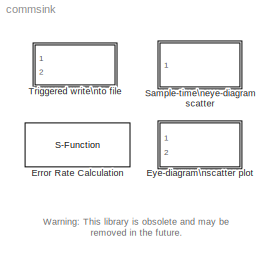
MODEL commsink
KIND library
BLOCK [S-Function] Error Rate Calculation
  FunctionName = scomerrrate
  MaskCallbackString = ||commblkerrrate(gcb,'CpMode');||commblkerrrate(gcb,'OutMode');||
  MaskDescription = Compute the error rate of the received data by comparing it to a delayed version of the transmitted data.  The delays are specified in number of samples, regardless of whether the input is a scalar or vector.  \n\nThe 'Computation mode' parameter allows the block to compare only certain portions of each frame.  For example, to compare only the first 10 and last 6 values in a frame of 80 symbols, s...<+334ch>
  MaskDisplay = disp('Error Rate\\nCalculation');\nport_label('input',s.i1,s.i1s);\nport_label('input',s.i2,s.i2s);\nport_label('input',s.i3,s.i3s);\nport_label('input',s.i4,s.i4s);
  MaskEnableString = on,on,on,off,on,on,on
  MaskIconFrame = on
  MaskIconOpaque = on
  MaskIconRotate = none
  MaskIconUnits = autoscale
  MaskInitialization = [s] = commblkerrrate(gcb,'init');\nif(PMode==1)\n    if(isempty(WsName))\n        error('Output variable name cannot be empty.')\n    end\n    if(~isletter(WsName(1)))\n        error('Output variable name must be a string.')\n    end\nend\n
  MaskPromptString = Receive delay:|Computation delay:|Computation mode:|Selected samples from frame:|Output data:|Variable name:|Reset port
  MaskSelfModifiable = on
  MaskStyleString = edit,edit,popup(Entire frame|Select samples from mask|Select samples from port),edit,popup(Workspace|Port),edit,checkbox
  MaskToolTipString = on,on,on,on,on,on,on
  MaskTunableValueString = off,off,off,off,off,off,off
  MaskType = Error Rate Calculation
  MaskValueString = 0|0|Entire frame|[]|Workspace|ErrorVec|off
  MaskVarAliasString = ,,,,,,
  MaskVariables = N=@1;st_delay=@2;cp_mode=@3;subframe=@4;PMode=@5;WsName=&6;RsMode2=@7;
  MaskVisibilityString = on,on,on,off,on,on,on
  Parameters = N, st_delay, cp_mode, subframe, PMode, WsName, RsMode2
  Ports = [2]
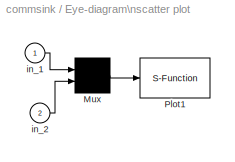
BLOCK [SubSystem] Eye-diagram\nscatter plot
  CopyFcn = eyediasi([],[],[],'CopyBlock')
  DeleteFcn = eyediasi([],[],[],'DeleteBlock')
  LoadFcn = eyediasi([],[],[],'LoadBlock')
  MaskCallbackString = |||||
  MaskDescription = Produce eye-pattern diagram/scatter plot/x-y plot with the rising edge of the second input as the decision line.
  MaskDisplay = plot(0,0,100,100,[5 95 95 5 5 5 5+90*[0:1/30:1] 5+90*[1:-1/30:0]],[35 35 95 95 35 65 sin([0:1/30:1]*pi*2)*25+65 sin([0:1/30:1]*pi*2)*25+65]*.8+9, x,y);
  MaskEnableString = on,on,on,on,on,on
  MaskHelp = This plot opens one, two, or three plots by assigning the line type parameters. The scatter plot point is selected by the rising edge of a trigger signal. A decision line is drawn at the rising edge of the trigger signal.
  MaskIconFrame = on
  MaskIconOpaque = on
  MaskIconRotate = port
  MaskIconUnits = autoscale
  MaskInitialization = [x,y]=trigicon(0,25,get_param(gcb,'orientation'),2);\n\n
  MaskPromptString = Eye-pattern plot time frame:|Lower and upper bound of in-coming signal (1x2 vector):|Number of saved traces:|Line-type for eye-pattern diagram (0 for no plot):|Line-type for scatter plot (0 for no plot):|Line-type for x-y plot (0 for no plot):
  MaskSelfModifiable = on
  MaskStyleString = edit,edit,edit,edit,edit,edit
  MaskToolTipString = on,on,on,on,on,on
  MaskTunableValueString = on,on,on,on,on,on
  MaskType = Eye-diagram/scatter plot
  MaskValueString = .2|[-1.5 1.5]|5|'y-/r-'|'y./g*'|'g-/y-.'
  MaskVarAliasString = ,,,,,
  MaskVariables = time_range=@1;boundary=@2;kept_length=@3;eye_line=@4;scatter_line=@5;two_d_line=@6;
  MaskVisibilityString = on,on,on,on,on,on
  NameChangeFcn = eyediasi([],[],[],'NameChange')
  Ports = [2]
  StartFcn = eyediasi([],[],[],'Start')
  StopFcn = eyediasi([],[],[],'Stop')
  TreatAsAtomicUnit = off
BLOCK [Mux] Eye-diagram\nscatter plot/Mux
  Inputs = 2
  Ports = [2, 1]
BLOCK [S-Function] Eye-diagram\nscatter plot/Plot1
  FunctionName = eyediasi
  MaskIconFrame = on
  MaskIconOpaque = on
  MaskIconRotate = none
  MaskIconUnits = autoscale
  MaskSelfModifiable = on
  Parameters = time_range, boundary, kept_length, eye_line, scatter_line, two_d_line
  Ports = [1]
BLOCK [Inport] Eye-diagram\nscatter plot/in_1
BLOCK [Inport] Eye-diagram\nscatter plot/in_2
  Port = 2
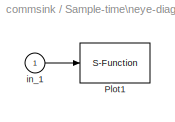
BLOCK [SubSystem] Sample-time\neye-diagram scatter
  CopyFcn = eyesampl([],[],[],'CopyBlock')
  DeleteFcn = eyesampl([],[],[],'DeleteBlock')
  LoadFcn = eyesampl([],[],[],'LoadBlock')
  MaskCallbackString = |||||
  MaskDescription = Produce eye-pattern diagram and/or scatter plot.
  MaskDisplay = plot(0,0,100,100,[5 95 95 5 5 5 5+90*[0:1/30:1] 5+90*[1:-1/30:0]],[35 35 95 95 35 65 sin([0:1/30:1]*pi*2)*25+65 sin([0:1/30:1]*pi*2)*25+65]);
  MaskEnableString = on,on,on,on,on,on
  MaskHelp = This plot opens one, or two plots by assigning the line type parameters. The scatter plot point is selected by the decision point in the first parameter entry. A decision line is drawn in the eye-pattern diagram. The plot is updated at the plot update sample time point.
  MaskIconFrame = on
  MaskIconOpaque = on
  MaskIconRotate = none
  MaskIconUnits = autoscale
  MaskPromptString = [Symbol interval, plot offset, decision point offset]:|Lower and upper bound of in-coming signal (1x2 vector):|Number of saved traces:|Line-type for eye-pattern diagram (0 for no plot):|Line-type for scatter plot (0 for no plot):|Plot update sample time:
  MaskSelfModifiable = on
  MaskStyleString = edit,edit,edit,edit,edit,edit
  MaskToolTipString = on,on,on,on,on,on
  MaskTunableValueString = on,on,on,on,on,on
  MaskType = Eye-diagram/scatter plot
  MaskValueString = [td, .05 .1]|[-1.5 1.5]|5|'y-/r-'|'y./g*'|ts
  MaskVarAliasString = ,,,,,
  MaskVariables = time_range=@1;boundary=@2;kept_length=@3;eye_line=@4;scatter_line=@5;two_d_line=@6;
  MaskVisibilityString = on,on,on,on,on,on
  NameChangeFcn = eyesampl([],[],[],'NameChange')
  Ports = [1]
  StartFcn = eyesampl([],[],[],'Start')
  StopFcn = eyesampl([],[],[],'Stop')
  TreatAsAtomicUnit = off
BLOCK [S-Function] Sample-time\neye-diagram scatter/Plot1
  FunctionName = eyesampl
  MaskIconFrame = on
  MaskIconOpaque = on
  MaskIconRotate = none
  MaskIconUnits = autoscale
  MaskSelfModifiable = on
  Parameters = time_range, boundary, kept_length, eye_line, scatter_line, two_d_line
  Ports = [1]
BLOCK [Inport] Sample-time\neye-diagram scatter/in_1
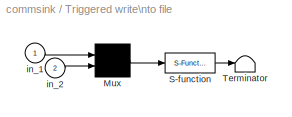
BLOCK [SubSystem] Triggered write\nto file
  MaskCallbackString = |||
  MaskDescription = The rising edge of the signal from the 2nd port triggers the block to write another row into the specified file.
  MaskDisplay = plot(0,0,100,100,100-[25 25 05 05 25 25 05 13 13 17 17 17 15 real(exp(j*pi*([0:20]/10+1/2)))*3.5+15 15 25 25 25+[0:1/30:1]*70],                \n[85 95 95 75 75 89 89 89 95 95 89 89 89 imag(exp(j*pi*([0:20]/10+1/2)))*3.5+85 89 89 85 -sin([0:1/30:1]*pi*2)*10+85]-15, x,y);disp('\\nWt file')
  MaskEnableString = on,on,on,on
  MaskHelp = This block writes the data input from the first port to the next row of the specified file at the rising edge of the second input trigger pulse. The first pulse triggers to write the first record. You can specify the number of pulses between writting records. When you specify ASCII format, there is no return added between two records.
  MaskIconFrame = on
  MaskIconOpaque = on
  MaskIconRotate = port
  MaskIconUnits = autoscale
  MaskInitialization = [x,y]=trigicon(0,25,get_param(gcb,'orientation'),2);\n
  MaskPromptString = File name (string, include extension):|Data type ('ascii', 'float', 'integer'):|Number of trigger pulses between saved data:|Threshold in detecting trigger signal:
  MaskStyleString = edit,edit,edit,edit
  MaskToolTipString = on,on,on,on
  MaskTunableValueString = on,on,on,on
  MaskType = Write to file
  MaskValueString = 'junk.dat'|'ascii'|0|0.5
  MaskVarAliasString = ,,,
  MaskVariables = filename=@1;datatype=@2;nump=@3;threshold=@4;
  MaskVisibilityString = on,on,on,on
  Ports = [2]
  TreatAsAtomicUnit = off
BLOCK [Mux] Triggered write\nto file/Mux
  Inputs = 2
  Ports = [2, 1]
BLOCK [S-Function] Triggered write\nto file/S-function
  FunctionName = swritfil
  Parameters = filename, datatype, nump, threshold
  Ports = [1, 1]
BLOCK [Terminator] Triggered write\nto file/Terminator
BLOCK [Inport] Triggered write\nto file/in_1
BLOCK [Inport] Triggered write\nto file/in_2
  Port = 2
ANNOTATION (root): Warning: This library is obsolete and may be\nremoved in the future.
LINE Eye-diagram\nscatter plot/Mux:1 -> Eye-diagram\nscatter plot/Plot1:1
LINE Eye-diagram\nscatter plot/in_1:1 -> Eye-diagram\nscatter plot/Mux:1
LINE Eye-diagram\nscatter plot/in_2:1 -> Eye-diagram\nscatter plot/Mux:2
LINE Sample-time\neye-diagram scatter/in_1:1 -> Sample-time\neye-diagram scatter/Plot1:1
LINE Triggered write\nto file/Mux:1 -> Triggered write\nto file/S-function:1
LINE Triggered write\nto file/S-function:1 -> Triggered write\nto file/Terminator:1
LINE Triggered write\nto file/in_1:1 -> Triggered write\nto file/Mux:1
LINE Triggered write\nto file/in_2:1 -> Triggered write\nto file/Mux:2
